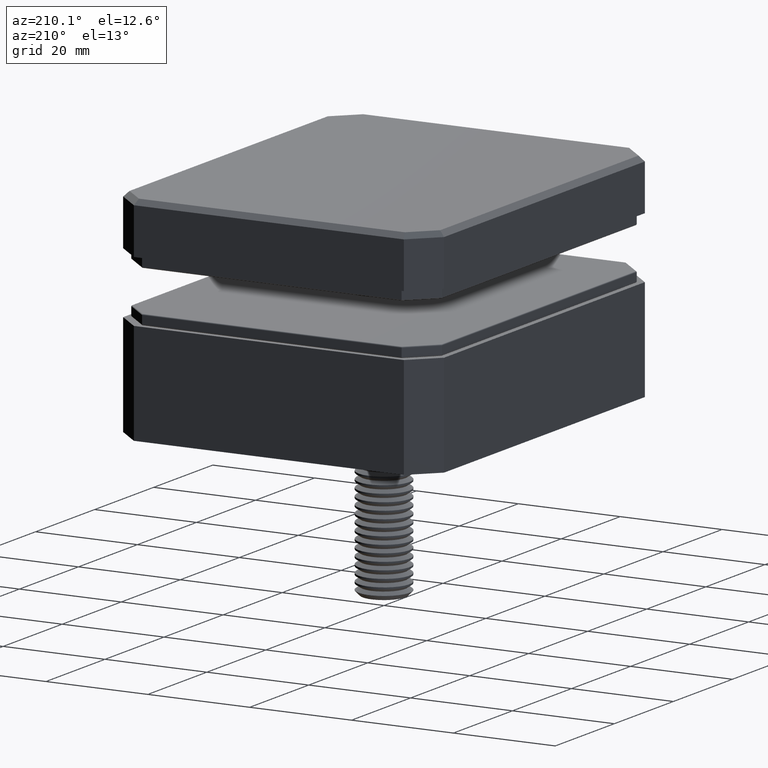
[diagram: clean part render]
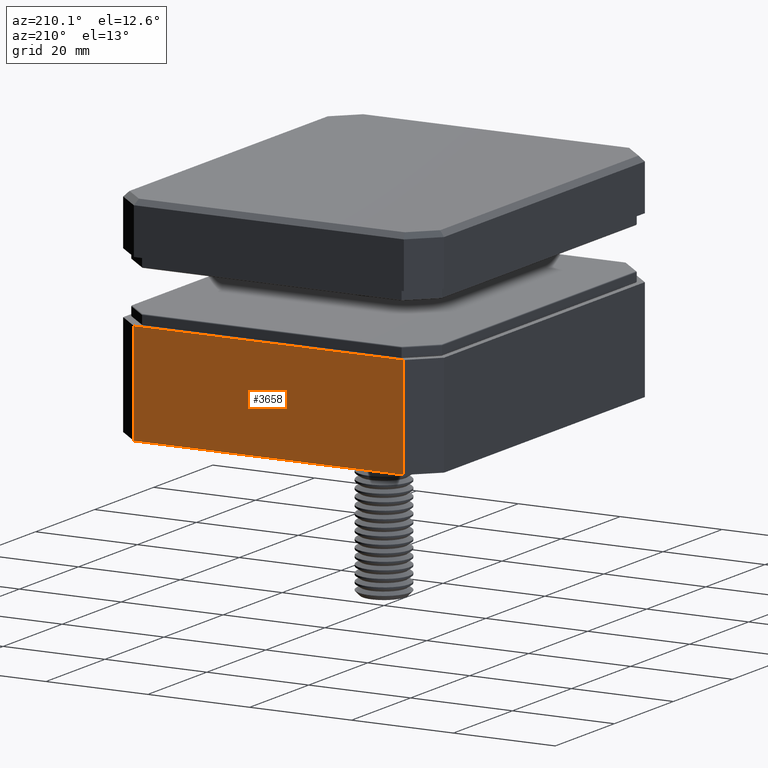
[diagram: same view with one face highlighted and labeled with its STEP entity id]
A machine part, auxiliary view. The second image highlights one B-rep face of the part: STEP entity #3658.
In plain terms, the highlighted planar face has unit normal (0, 1, 0).
Its self-contained STEP definition (entity closure, byte-faithful):
#1004 = CARTESIAN_POINT ( 'NONE',  ( -26.50000000000000355, 39.00000000000001421, 0.000000000000000000 ) ) ;
#1412 = EDGE_LOOP ( 'NONE', ( #29606, #3611, #23531, #30156 ) ) ;
#1879 = LINE ( 'NONE', #19452, #7476 ) ;
#2033 = CARTESIAN_POINT ( 'NONE',  ( -26.50000000000000355, 39.00000000000001421, 20.00000000000000000 ) ) ;
#3148 = LINE ( 'NONE', #23005, #21134 ) ;
#3611 = ORIENTED_EDGE ( 'NONE', *, *, #5708, .T. ) ;
#3658 = ADVANCED_FACE ( 'NONE', ( #28464 ), #19293, .T. ) ;
#3903 = VERTEX_POINT ( 'NONE', #2033 ) ;
#4115 = VERTEX_POINT ( 'NONE', #1004 ) ;
#4827 = CARTESIAN_POINT ( 'NONE',  ( 26.49999999999994671, 39.00000000000002132, 20.00000000000000000 ) ) ;
#4845 = CARTESIAN_POINT ( 'NONE',  ( 26.49999999999995026, 39.00000000000002132, 0.000000000000000000 ) ) ;
#5104 = DIRECTION ( 'NONE',  ( 1.000000000000000000, 0.000000000000000000, 0.000000000000000000 ) ) ;
#5708 = EDGE_CURVE ( 'NONE', #4115, #3903, #13371, .T. ) ;
#7476 = VECTOR ( 'NONE', #5104, 1000.000000000000000 ) ;
#8742 = DIRECTION ( 'NONE',  ( 0.000000000000000000, 0.000000000000000000, -1.000000000000000000 ) ) ;
#9426 = AXIS2_PLACEMENT_3D ( 'NONE', #29005, #21709, #16990 ) ;
#10206 = CARTESIAN_POINT ( 'NONE',  ( -26.50000000000000355, 39.00000000000001421, 20.00000000000000000 ) ) ;
#10731 = VECTOR ( 'NONE', #29677, 1000.000000000000000 ) ;
#11152 = VECTOR ( 'NONE', #24105, 1000.000000000000000 ) ;
#11459 = VERTEX_POINT ( 'NONE', #4827 ) ;
#12551 = EDGE_CURVE ( 'NONE', #3903, #11459, #1879, .T. ) ;
#13371 = LINE ( 'NONE', #10206, #10731 ) ;
#16894 = CARTESIAN_POINT ( 'NONE',  ( -31.50000000000000711, 39.00000000000001421, 0.000000000000000000 ) ) ;
#16990 = DIRECTION ( 'NONE',  ( 0.000000000000000000, -0.000000000000000000, 1.000000000000000000 ) ) ;
#17015 = EDGE_CURVE ( 'NONE', #11459, #29506, #3148, .T. ) ;
#19293 = PLANE ( 'NONE',  #9426 ) ;
#19452 = CARTESIAN_POINT ( 'NONE',  ( -31.50000000000000711, 39.00000000000001421, 20.00000000000000000 ) ) ;
#20813 = EDGE_CURVE ( 'NONE', #4115, #29506, #28361, .T. ) ;
#21134 = VECTOR ( 'NONE', #8742, 1000.000000000000000 ) ;
#21709 = DIRECTION ( 'NONE',  ( 0.000000000000000000, 1.000000000000000000, 0.000000000000000000 ) ) ;
#23005 = CARTESIAN_POINT ( 'NONE',  ( 26.49999999999996092, 39.00000000000001421, 20.00000000000000000 ) ) ;
#23531 = ORIENTED_EDGE ( 'NONE', *, *, #12551, .T. ) ;
#24105 = DIRECTION ( 'NONE',  ( 1.000000000000000000, 0.000000000000000000, 0.000000000000000000 ) ) ;
#28361 = LINE ( 'NONE', #16894, #11152 ) ;
#28464 = FACE_OUTER_BOUND ( 'NONE', #1412, .T. ) ;
#29005 = CARTESIAN_POINT ( 'NONE',  ( -31.50000000000000711, 39.00000000000001421, 20.00000000000000000 ) ) ;
#29506 = VERTEX_POINT ( 'NONE', #4845 ) ;
#29606 = ORIENTED_EDGE ( 'NONE', *, *, #20813, .F. ) ;
#29677 = DIRECTION ( 'NONE',  ( 0.000000000000000000, 0.000000000000000000, 1.000000000000000000 ) ) ;
#30156 = ORIENTED_EDGE ( 'NONE', *, *, #17015, .T. ) ;